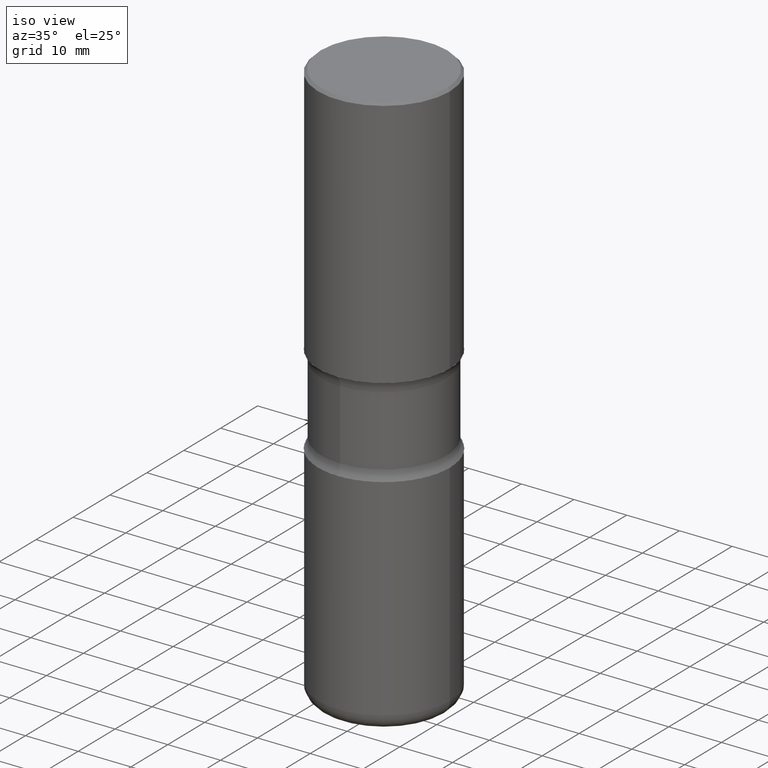
[diagram: clean part render]
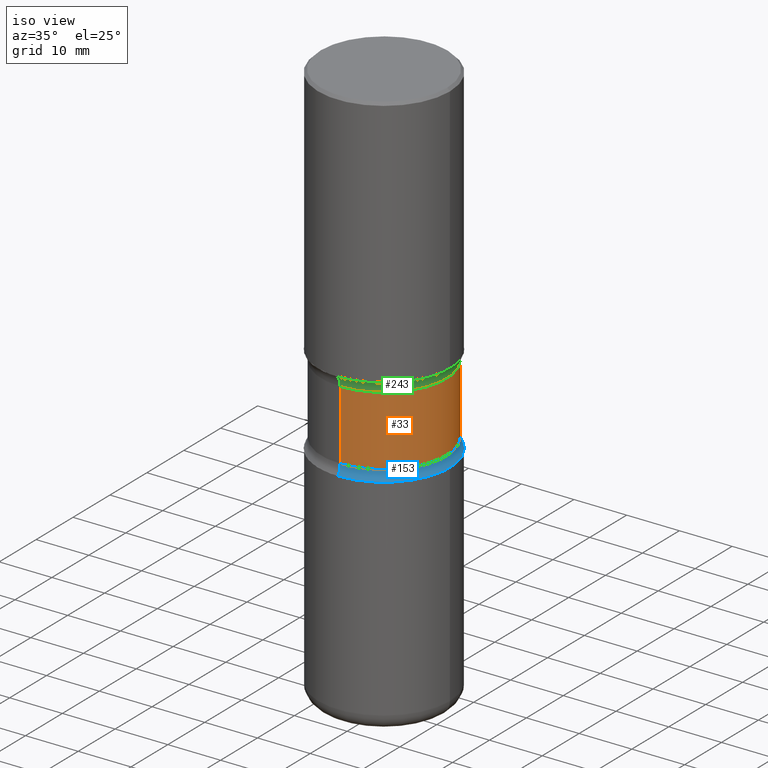
[diagram: same view with three faces highlighted in distinct colors, each labeled with its STEP entity id]
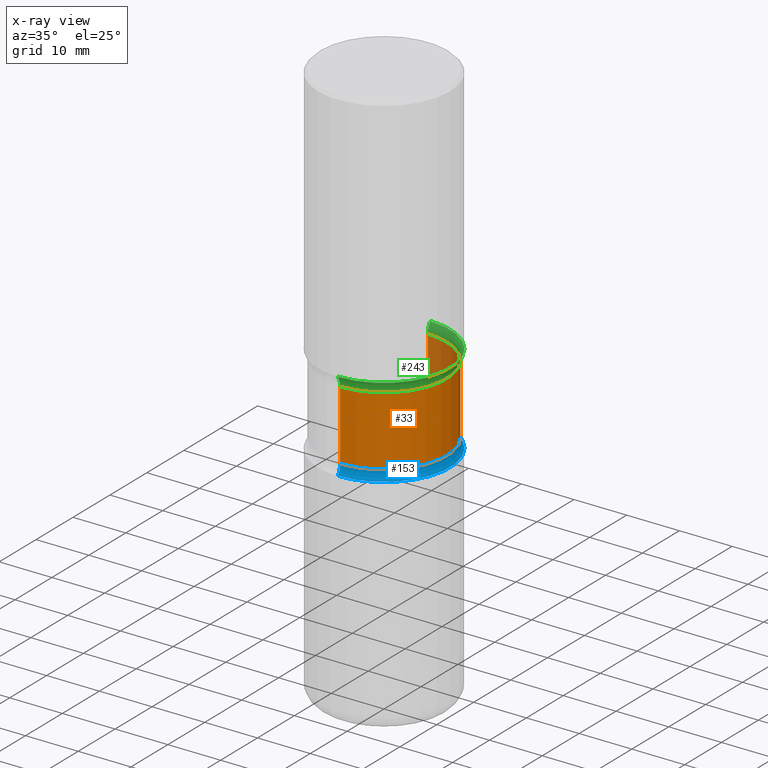
[diagram: x-ray of the same camera — body ghosted, the three highlighted faces saturated]
A machine part, iso view with three faces highlighted in distinct colors.
The next image is the same camera in x-ray (body ghosted, the three faces saturated) — at least one of them is partly hidden behind the body in this view.
Their STEP definitions:

[orange] entity #33 — the highlighted cylindrical surface (partial cylindrical patch) has radius 11.8745 mm, axis along (0, -0, -1).
#2 = DIRECTION ( 'NONE',  ( 6.982962677686265922E-15, 1.000000000000000000, -3.506115072082476004E-15 ) ) ;
#10 = CARTESIAN_POINT ( 'NONE',  ( 3.264535051818434527E-15, 0.4674999999999853162, -4.252000000000002444 ) ) ;
#30 = VECTOR ( 'NONE', #175, 39.37007874015748143 ) ;
#33 = ADVANCED_FACE ( 'NONE', ( #343 ), #391, .T. ) ;
#71 = VERTEX_POINT ( 'NONE', #273 ) ;
#98 = CARTESIAN_POINT ( 'NONE',  ( 3.264535051818377729E-15, 0.4674999999999931433, -1.964331050576255677 ) ) ;
#102 = CIRCLE ( 'NONE', #123, 0.4675000000000000266 ) ;
#104 = CARTESIAN_POINT ( 'NONE',  ( 4.803851608567179445E-29, -6.858222857668393721E-15, -1.964331050576254123 ) ) ;
#123 = AXIS2_PLACEMENT_3D ( 'NONE', #104, #207, #130 ) ;
#130 = DIRECTION ( 'NONE',  ( 6.982962677686265922E-15, 1.000000000000000000, -3.506115072082476793E-15 ) ) ;
#144 = AXIS2_PLACEMENT_3D ( 'NONE', #508, #292, #338 ) ;
#163 = EDGE_CURVE ( 'NONE', #166, #199, #487, .T. ) ;
#166 = VERTEX_POINT ( 'NONE', #98 ) ;
#175 = DIRECTION ( 'NONE',  ( 2.445231236012367255E-29, -3.491821552852205219E-15, -1.000000000000000000 ) ) ;
#199 = VERTEX_POINT ( 'NONE', #233 ) ;
#207 = DIRECTION ( 'NONE',  ( 2.445231236012367255E-29, -3.491821552852205613E-15, -1.000000000000000000 ) ) ;
#208 = DIRECTION ( 'NONE',  ( 2.445231236012367255E-29, -3.491821552852205613E-15, -1.000000000000000000 ) ) ;
#233 = CARTESIAN_POINT ( 'NONE',  ( 3.264535051818391139E-15, 0.4674999999999915334, -2.484568949423748396 ) ) ;
#273 = CARTESIAN_POINT ( 'NONE',  ( -3.291838451780678509E-15, -0.4675000000000068545, -1.964331050576252347 ) ) ;
#292 = DIRECTION ( 'NONE',  ( 2.445231236012367255E-29, -3.491821552852205613E-15, -1.000000000000000000 ) ) ;
#294 = ORIENTED_EDGE ( 'NONE', *, *, #500, .F. ) ;
#295 = CARTESIAN_POINT ( 'NONE',  ( -3.207282813958087712E-15, -0.4675000000000149591, -4.251999999999998892 ) ) ;
#325 = ORIENTED_EDGE ( 'NONE', *, *, #163, .F. ) ;
#338 = DIRECTION ( 'NONE',  ( 6.982962677686265133E-15, 1.000000000000000000, -3.506115072082475215E-15 ) ) ;
#343 = FACE_OUTER_BOUND ( 'NONE', #541, .T. ) ;
#360 = DIRECTION ( 'NONE',  ( 2.445231236012367255E-29, -3.491821552852205219E-15, -1.000000000000000000 ) ) ;
#386 = EDGE_CURVE ( 'NONE', #166, #71, #102, .T. ) ;
#391 = CYLINDRICAL_SURFACE ( 'NONE', #521, 0.4675000000000001377 ) ;
#439 = VECTOR ( 'NONE', #360, 39.37007874015748143 ) ;
#454 = ORIENTED_EDGE ( 'NONE', *, *, #386, .T. ) ;
#468 = EDGE_CURVE ( 'NONE', #71, #505, #559, .T. ) ;
#469 = CARTESIAN_POINT ( 'NONE',  ( -3.291838451780665098E-15, -0.4675000000000088529, -2.484568949423744844 ) ) ;
#487 = LINE ( 'NONE', #10, #439 ) ;
#500 = EDGE_CURVE ( 'NONE', #199, #505, #510, .T. ) ;
#505 = VERTEX_POINT ( 'NONE', #469 ) ;
#508 = CARTESIAN_POINT ( 'NONE',  ( 6.075953568986510396E-29, -8.674800765474615334E-15, -2.484568949423746620 ) ) ;
#510 = CIRCLE ( 'NONE', #144, 0.4675000000000001932 ) ;
#519 = CARTESIAN_POINT ( 'NONE',  ( 1.039773118135371932E-28, -1.484635460105699266E-14, -4.252000000000000668 ) ) ;
#521 = AXIS2_PLACEMENT_3D ( 'NONE', #519, #208, #2 ) ;
#541 = EDGE_LOOP ( 'NONE', ( #454, #557, #294, #325 ) ) ;
#557 = ORIENTED_EDGE ( 'NONE', *, *, #468, .T. ) ;
#559 = LINE ( 'NONE', #295, #30 ) ;

[blue] entity #153 — the highlighted toroidal blend (fillet) surface has major radius 15.0495 mm and minor (blend) radius 3.175 mm.
#1 = DIRECTION ( 'NONE',  ( -6.982962677686268288E-15, -1.000000000000000000, 0.000000000000000000 ) ) ;
#13 = CIRCLE ( 'NONE', #133, 0.4921500000000003094 ) ;
#19 = EDGE_LOOP ( 'NONE', ( #408, #551, #131, #412 ) ) ;
#47 = AXIS2_PLACEMENT_3D ( 'NONE', #257, #86, #1 ) ;
#53 = FACE_OUTER_BOUND ( 'NONE', #19, .T. ) ;
#65 = CARTESIAN_POINT ( 'NONE',  ( -3.376394089603198309E-15, -0.4921500000000092467, -2.559099999999998598 ) ) ;
#86 = DIRECTION ( 'NONE',  ( -1.000000000000000000, 6.982962677686265922E-15, -4.883557194083112340E-29 ) ) ;
#111 = AXIS2_PLACEMENT_3D ( 'NONE', #142, #482, #138 ) ;
#131 = ORIENTED_EDGE ( 'NONE', *, *, #425, .T. ) ;
#133 = AXIS2_PLACEMENT_3D ( 'NONE', #406, #315, #493 ) ;
#138 = DIRECTION ( 'NONE',  ( 6.982962677686266711E-15, 1.000000000000000000, -3.491821552852205613E-15 ) ) ;
#142 = CARTESIAN_POINT ( 'NONE',  ( 6.075935862631948710E-29, -8.674826121982131059E-15, -2.484568949423746620 ) ) ;
#144 = AXIS2_PLACEMENT_3D ( 'NONE', #508, #292, #338 ) ;
#153 = ADVANCED_FACE ( 'NONE', ( #53 ), #309, .F. ) ;
#157 = CIRCLE ( 'NONE', #418, 0.1249999999999999029 ) ;
#193 = CIRCLE ( 'NONE', #47, 0.1249999999999999029 ) ;
#199 = VERTEX_POINT ( 'NONE', #233 ) ;
#219 = EDGE_CURVE ( 'NONE', #321, #505, #157, .T. ) ;
#233 = CARTESIAN_POINT ( 'NONE',  ( 3.264535051818391139E-15, 0.4674999999999915334, -2.484568949423748396 ) ) ;
#257 = CARTESIAN_POINT ( 'NONE',  ( 4.137405386529174084E-15, 0.5924999999999914779, -2.484568949423748840 ) ) ;
#292 = DIRECTION ( 'NONE',  ( 2.445231236012367255E-29, -3.491821552852205613E-15, -1.000000000000000000 ) ) ;
#308 = CARTESIAN_POINT ( 'NONE',  ( -4.064845063679572150E-15, -0.5925000000000087974, -2.484568949423744399 ) ) ;
#309 = TOROIDAL_SURFACE ( 'NONE', #111, 0.5925000000000001377, 0.1249999999999999306 ) ;
#315 = DIRECTION ( 'NONE',  ( 2.445231236012367255E-29, -3.491821552852205613E-15, -1.000000000000000000 ) ) ;
#321 = VERTEX_POINT ( 'NONE', #65 ) ;
#332 = CARTESIAN_POINT ( 'NONE',  ( 3.436665081823360858E-15, 0.4921499999999913721, -2.559100000000001707 ) ) ;
#338 = DIRECTION ( 'NONE',  ( 6.982962677686265133E-15, 1.000000000000000000, -3.506115072082475215E-15 ) ) ;
#406 = CARTESIAN_POINT ( 'NONE',  ( 6.258199221908382824E-29, -8.935049894233495342E-15, -2.559099999999999930 ) ) ;
#408 = ORIENTED_EDGE ( 'NONE', *, *, #219, .F. ) ;
#411 = DIRECTION ( 'NONE',  ( 1.000000000000000000, -6.860497997771530774E-15, 4.840794713204170268E-29 ) ) ;
#412 = ORIENTED_EDGE ( 'NONE', *, *, #500, .T. ) ;
#418 = AXIS2_PLACEMENT_3D ( 'NONE', #308, #411, #537 ) ;
#425 = EDGE_CURVE ( 'NONE', #428, #199, #193, .T. ) ;
#428 = VERTEX_POINT ( 'NONE', #332 ) ;
#469 = CARTESIAN_POINT ( 'NONE',  ( -3.291838451780665098E-15, -0.4675000000000088529, -2.484568949423744844 ) ) ;
#482 = DIRECTION ( 'NONE',  ( 2.445231236012367255E-29, -3.491821552852205613E-15, -1.000000000000000000 ) ) ;
#493 = DIRECTION ( 'NONE',  ( 6.982962677686265922E-15, 1.000000000000000000, -3.330506545156063891E-15 ) ) ;
#500 = EDGE_CURVE ( 'NONE', #199, #505, #510, .T. ) ;
#505 = VERTEX_POINT ( 'NONE', #469 ) ;
#508 = CARTESIAN_POINT ( 'NONE',  ( 6.075953568986510396E-29, -8.674800765474615334E-15, -2.484568949423746620 ) ) ;
#510 = CIRCLE ( 'NONE', #144, 0.4675000000000001932 ) ;
#537 = DIRECTION ( 'NONE',  ( 6.860497997771531562E-15, 1.000000000000000000, 0.000000000000000000 ) ) ;
#551 = ORIENTED_EDGE ( 'NONE', *, *, #554, .F. ) ;
#554 = EDGE_CURVE ( 'NONE', #428, #321, #13, .T. ) ;

[green] entity #243 — the highlighted toroidal blend (fillet) surface has major radius 15.0495 mm and minor (blend) radius 3.175 mm.
#27 = DIRECTION ( 'NONE',  ( 2.445231236012367255E-29, -3.491821552852205613E-15, -1.000000000000000000 ) ) ;
#37 = DIRECTION ( 'NONE',  ( 6.860497997771532351E-15, 1.000000000000000000, 0.000000000000000000 ) ) ;
#62 = DIRECTION ( 'NONE',  ( -6.982962677686265133E-15, -1.000000000000000000, 0.000000000000000000 ) ) ;
#70 = DIRECTION ( 'NONE',  ( 2.445231236012367255E-29, -3.491821552852205613E-15, -1.000000000000000000 ) ) ;
#71 = VERTEX_POINT ( 'NONE', #273 ) ;
#72 = CARTESIAN_POINT ( 'NONE',  ( 4.621605955645307016E-29, -6.597973728909513714E-15, -1.889800000000000368 ) ) ;
#98 = CARTESIAN_POINT ( 'NONE',  ( 3.264535051818377729E-15, 0.4674999999999931433, -1.964331050576255677 ) ) ;
#102 = CIRCLE ( 'NONE', #123, 0.4675000000000000266 ) ;
#104 = CARTESIAN_POINT ( 'NONE',  ( 4.803851608567179445E-29, -6.858222857668393721E-15, -1.964331050576254123 ) ) ;
#108 = CARTESIAN_POINT ( 'NONE',  ( 3.436665081823343897E-15, 0.4921499999999937036, -1.889800000000002367 ) ) ;
#123 = AXIS2_PLACEMENT_3D ( 'NONE', #104, #207, #130 ) ;
#130 = DIRECTION ( 'NONE',  ( 6.982962677686265922E-15, 1.000000000000000000, -3.506115072082476793E-15 ) ) ;
#166 = VERTEX_POINT ( 'NONE', #98 ) ;
#197 = DIRECTION ( 'NONE',  ( 6.982962677686266711E-15, 1.000000000000000000, -3.491821552852205613E-15 ) ) ;
#207 = DIRECTION ( 'NONE',  ( 2.445231236012367255E-29, -3.491821552852205613E-15, -1.000000000000000000 ) ) ;
#213 = TOROIDAL_SURFACE ( 'NONE', #230, 0.5925000000000000266, 0.1250000000000000555 ) ;
#230 = AXIS2_PLACEMENT_3D ( 'NONE', #494, #70, #197 ) ;
#239 = ORIENTED_EDGE ( 'NONE', *, *, #507, .F. ) ;
#243 = ADVANCED_FACE ( 'NONE', ( #459 ), #213, .F. ) ;
#245 = CARTESIAN_POINT ( 'NONE',  ( -3.376394089603214875E-15, -0.4921500000000069153, -1.889799999999998592 ) ) ;
#262 = VERTEX_POINT ( 'NONE', #245 ) ;
#273 = CARTESIAN_POINT ( 'NONE',  ( -3.291838451780678509E-15, -0.4675000000000068545, -1.964331050576252347 ) ) ;
#281 = CARTESIAN_POINT ( 'NONE',  ( 4.137405386529160673E-15, 0.5924999999999932543, -1.964331050576256121 ) ) ;
#289 = EDGE_CURVE ( 'NONE', #553, #262, #376, .T. ) ;
#316 = CIRCLE ( 'NONE', #395, 0.1250000000000000278 ) ;
#337 = CIRCLE ( 'NONE', #365, 0.1250000000000000278 ) ;
#348 = EDGE_CURVE ( 'NONE', #166, #553, #316, .T. ) ;
#363 = AXIS2_PLACEMENT_3D ( 'NONE', #72, #27, #366 ) ;
#365 = AXIS2_PLACEMENT_3D ( 'NONE', #465, #513, #37 ) ;
#366 = DIRECTION ( 'NONE',  ( 6.982962677686265922E-15, 1.000000000000000000, -3.330506545156063891E-15 ) ) ;
#376 = CIRCLE ( 'NONE', #363, 0.4921500000000003094 ) ;
#386 = EDGE_CURVE ( 'NONE', #166, #71, #102, .T. ) ;
#395 = AXIS2_PLACEMENT_3D ( 'NONE', #281, #497, #62 ) ;
#414 = EDGE_LOOP ( 'NONE', ( #239, #458, #525, #481 ) ) ;
#458 = ORIENTED_EDGE ( 'NONE', *, *, #386, .F. ) ;
#459 = FACE_OUTER_BOUND ( 'NONE', #414, .T. ) ;
#465 = CARTESIAN_POINT ( 'NONE',  ( -4.064845063679584772E-15, -0.5925000000000069100, -1.964331050576251902 ) ) ;
#481 = ORIENTED_EDGE ( 'NONE', *, *, #289, .T. ) ;
#494 = CARTESIAN_POINT ( 'NONE',  ( 4.803710309205107225E-29, -6.858425206397141862E-15, -1.964331050576254123 ) ) ;
#497 = DIRECTION ( 'NONE',  ( -1.000000000000000000, 6.982962677686265922E-15, -4.883557194083112340E-29 ) ) ;
#507 = EDGE_CURVE ( 'NONE', #71, #262, #337, .T. ) ;
#513 = DIRECTION ( 'NONE',  ( 1.000000000000000000, -6.860497997771530774E-15, 4.840794713204170268E-29 ) ) ;
#525 = ORIENTED_EDGE ( 'NONE', *, *, #348, .T. ) ;
#553 = VERTEX_POINT ( 'NONE', #108 ) ;